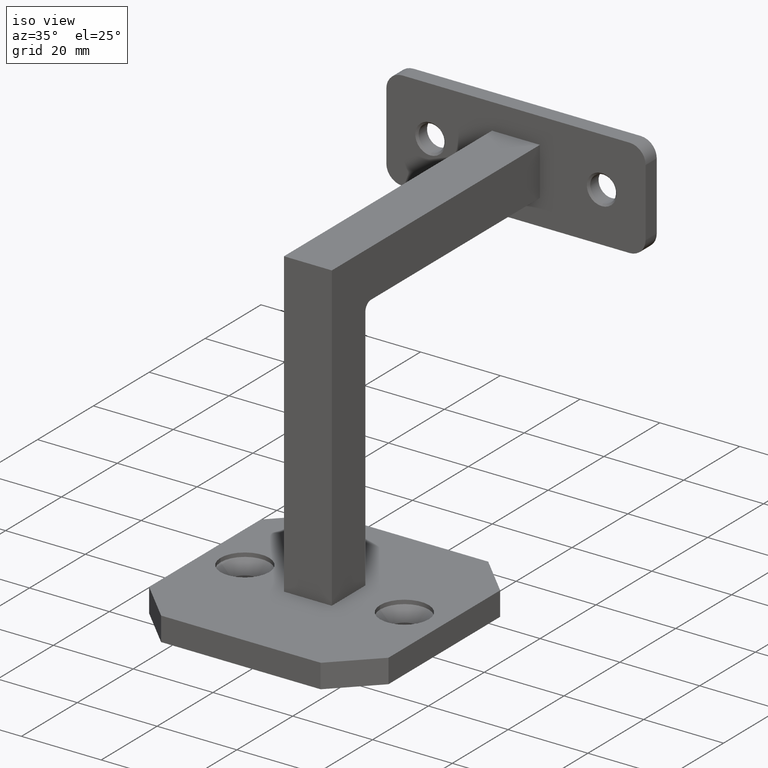
[diagram: clean part render]
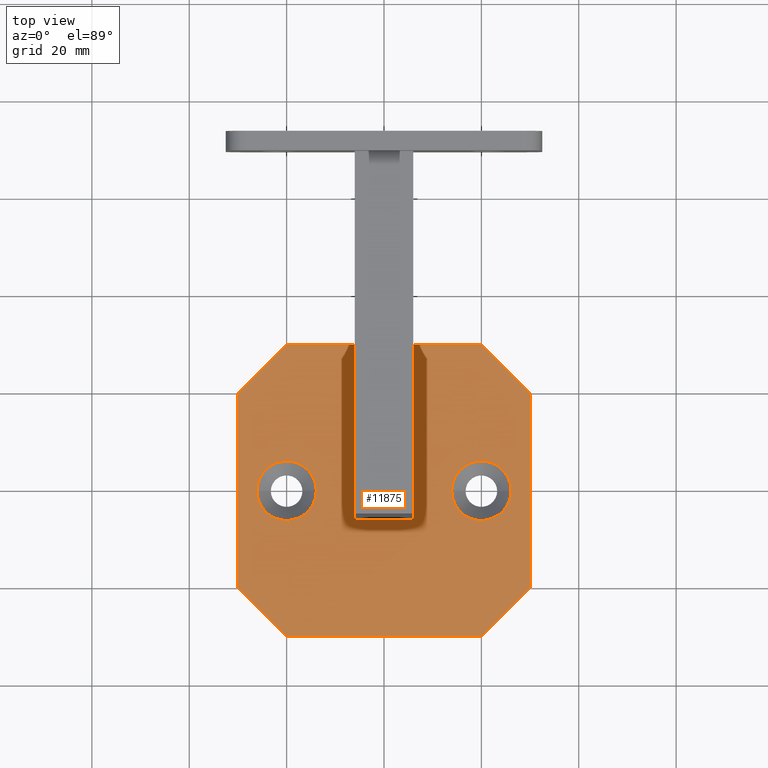
[diagram: tour spotlight — one face highlighted and labeled with its STEP entity id]
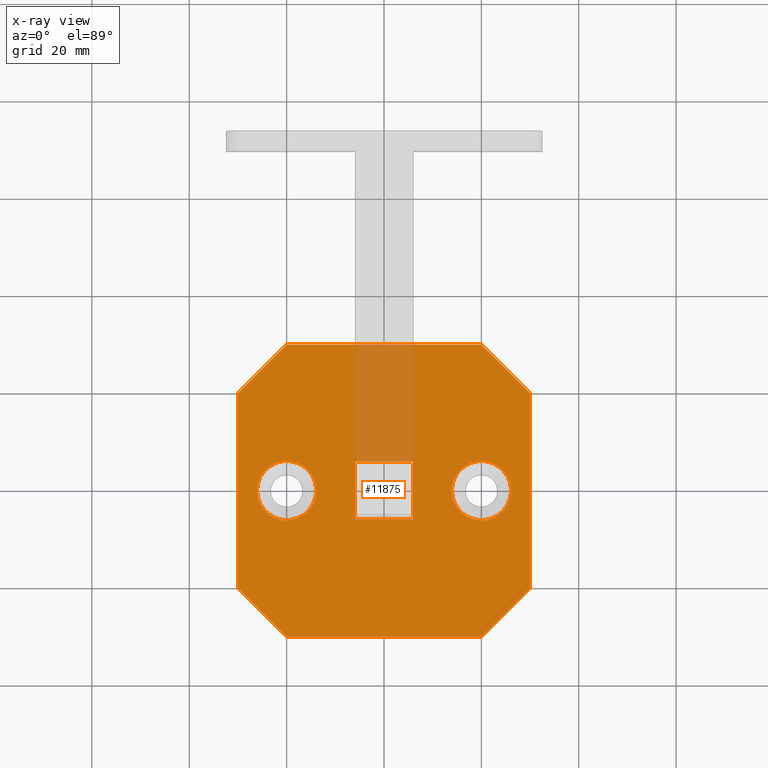
[diagram: x-ray of the same camera — body ghosted, this tour face saturated]
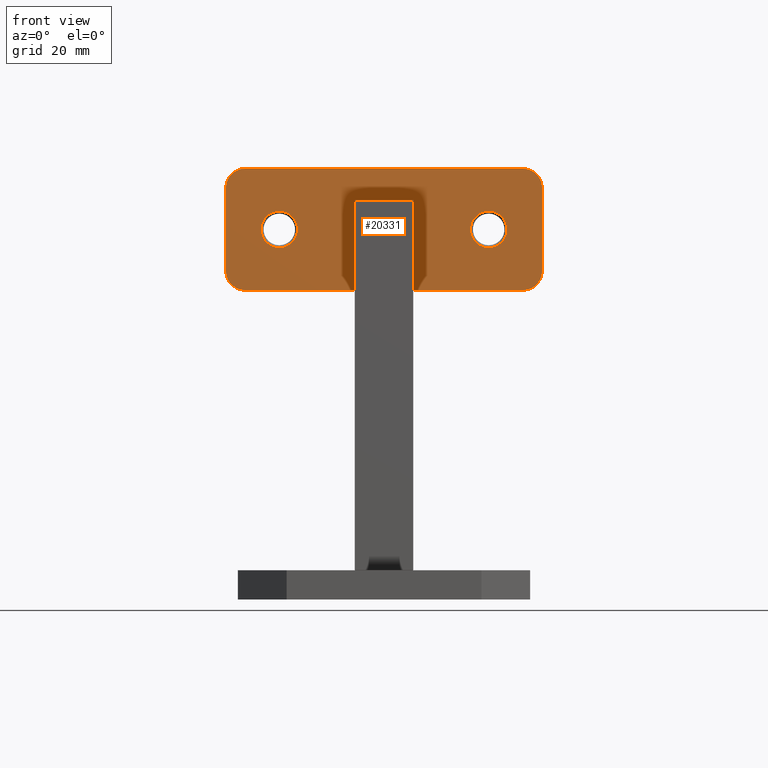
[diagram: tour spotlight — one face highlighted and labeled with its STEP entity id]
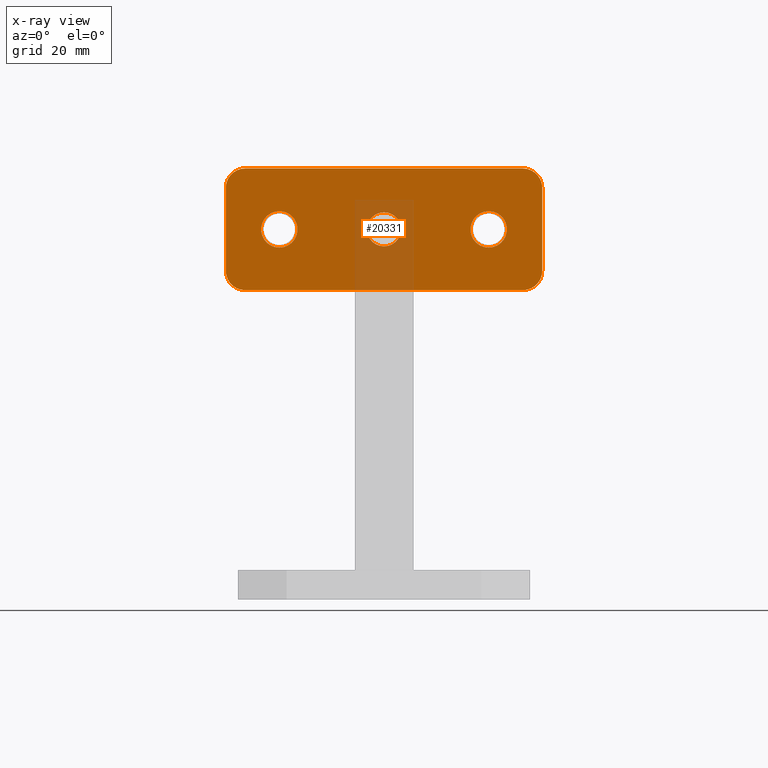
[diagram: x-ray of the same camera — body ghosted, this tour face saturated]
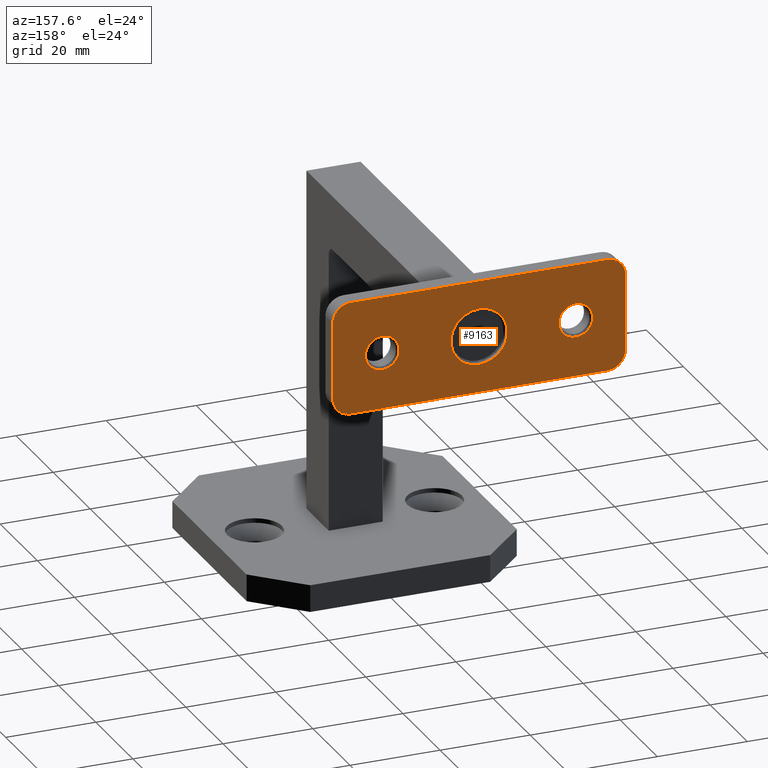
[diagram: tour spotlight — one face highlighted and labeled with its STEP entity id]
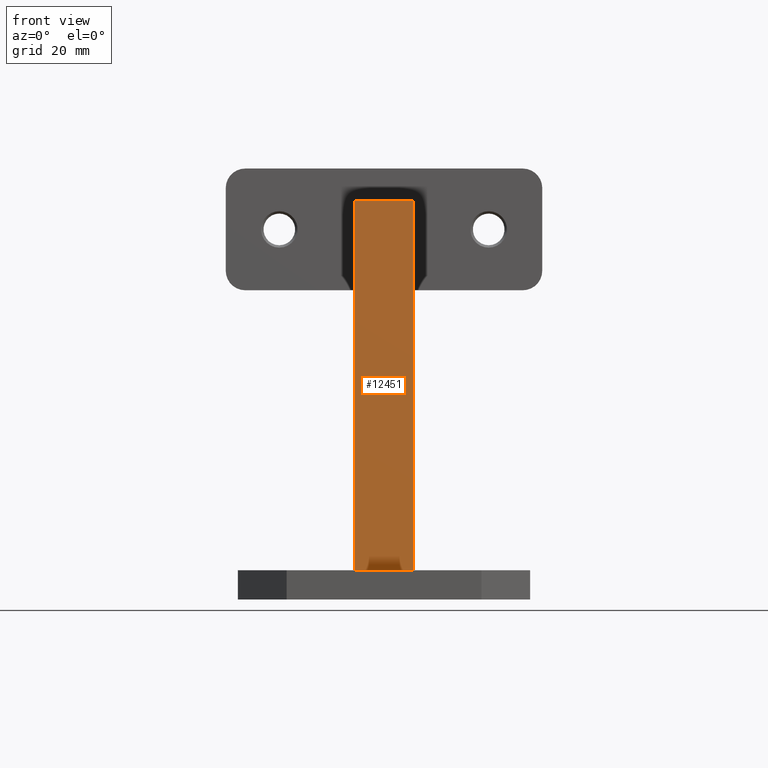
[diagram: tour spotlight — one face highlighted and labeled with its STEP entity id]
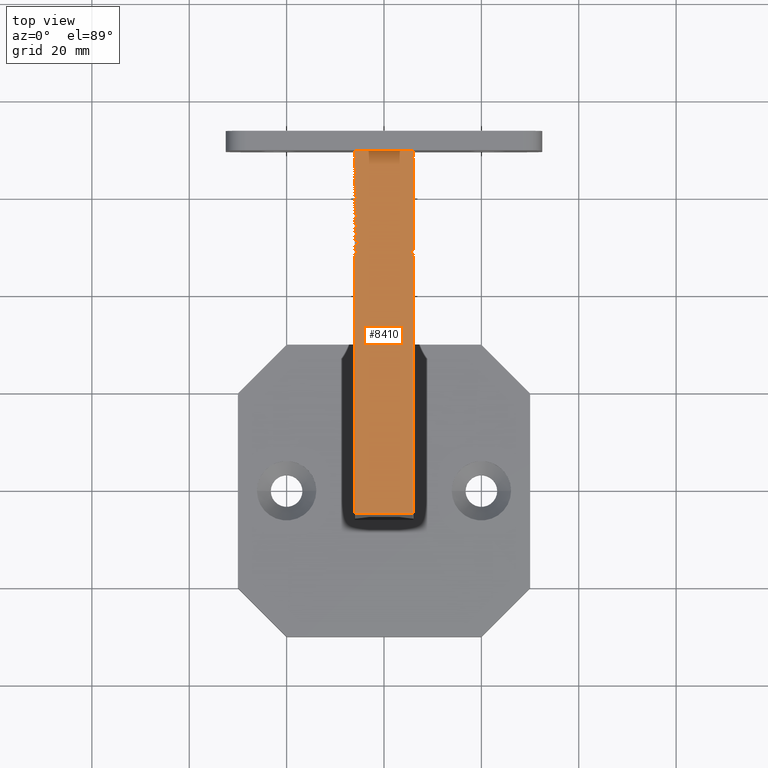
[diagram: tour spotlight — one face highlighted and labeled with its STEP entity id]
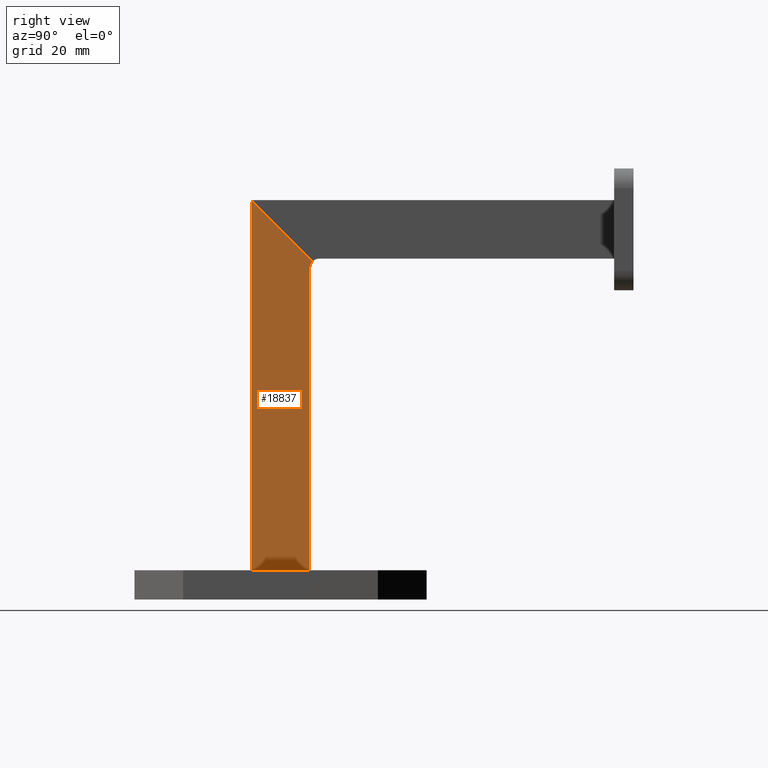
[diagram: tour spotlight — one face highlighted and labeled with its STEP entity id]
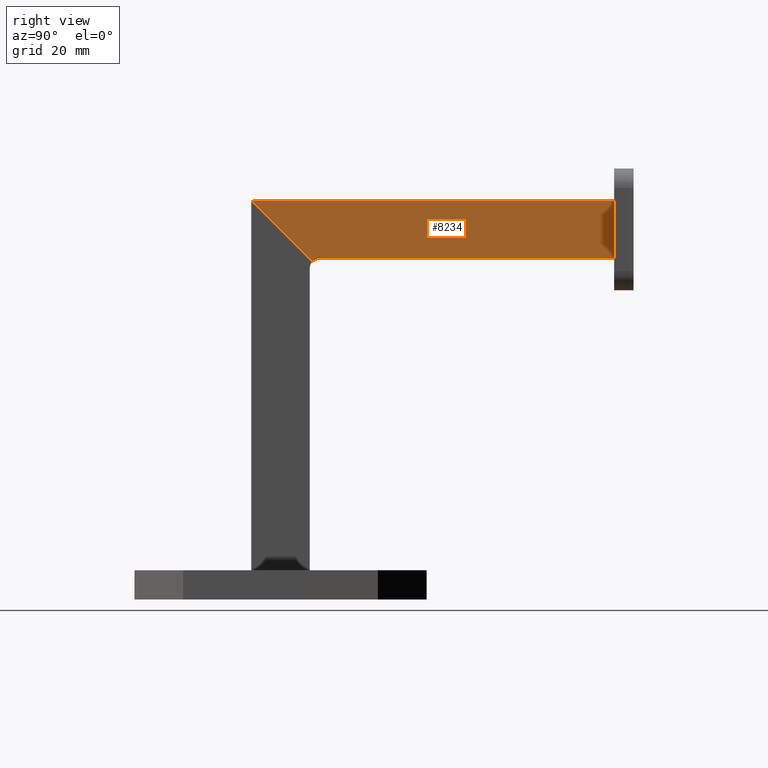
[diagram: tour spotlight — one face highlighted and labeled with its STEP entity id]
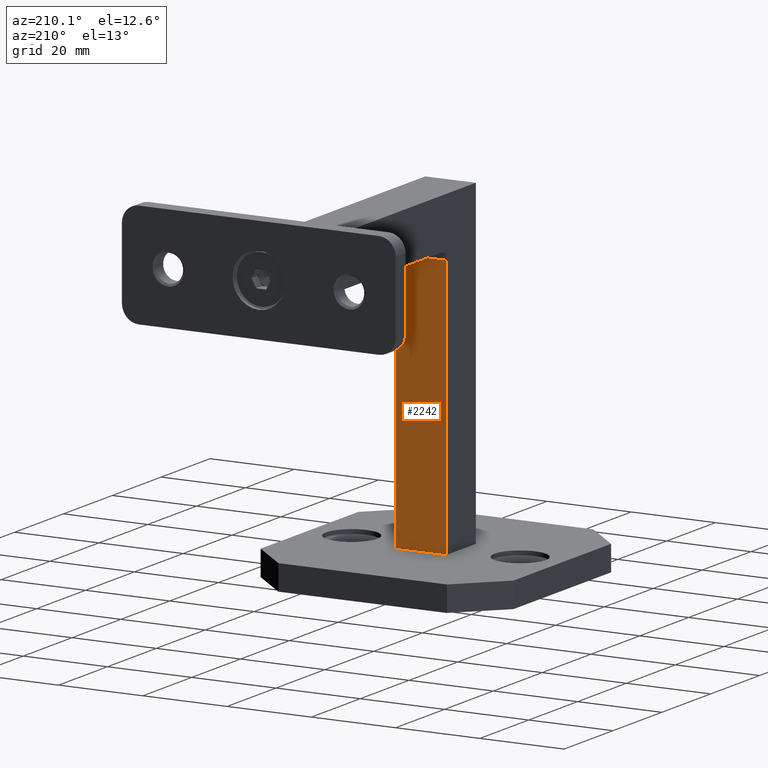
[diagram: tour spotlight — one face highlighted and labeled with its STEP entity id]
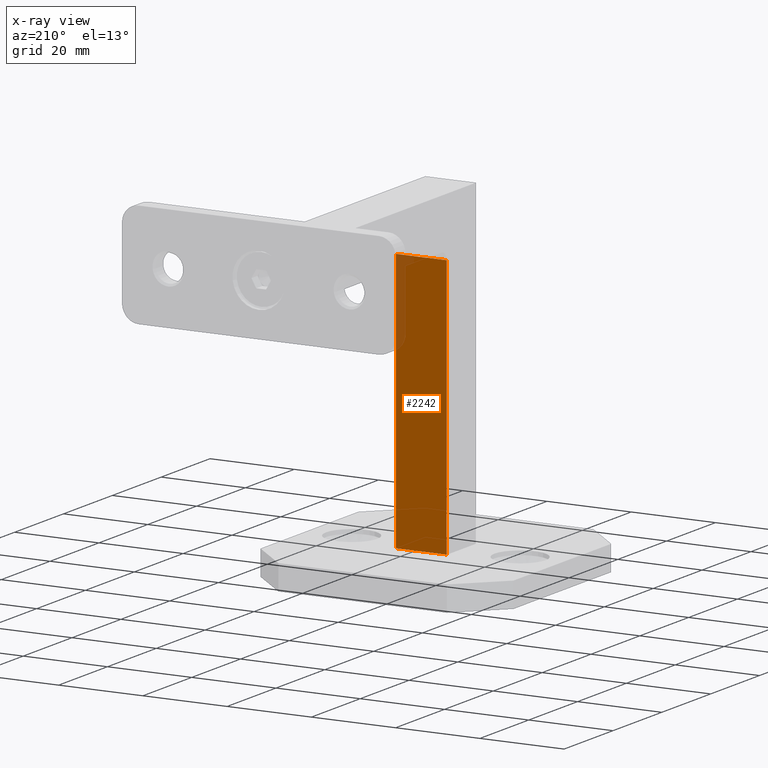
[diagram: x-ray of the same camera — body ghosted, this tour face saturated]
A machine part: a face-by-face anatomy tour. The part has 432 B-rep faces; the first image is the clean iso view, then the 8 largest visible faces are spotlighted one at a time (largest first), each with its STEP entity span.

Face 1 — top view, entity #11875. An x-ray twin of the same camera follows (body ghosted, this face saturated) — the face is partly hidden behind the body. In plain terms, the highlighted planar face has unit normal (0, 0, 1).
Definition (entity closure, byte-faithful):
#186 = DIRECTION ( 'NONE',  ( -0.000000000000000000, -0.000000000000000000, 1.000000000000000000 ) ) ;
#515 = ORIENTED_EDGE ( 'NONE', *, *, #21458, .T. ) ;
#551 = DIRECTION ( 'NONE',  ( 0.7071067811865459074, -0.7071067811865491270, 0.000000000000000000 ) ) ;
#609 = CARTESIAN_POINT ( 'NONE',  ( -5.949999999999995737, 5.949999999999995737, 3.000000000000000444 ) ) ;
#975 = EDGE_LOOP ( 'NONE', ( #13327, #7490, #19783, #22937, #19043 ) ) ;
#1292 = VERTEX_POINT ( 'NONE', #11741 ) ;
#1524 = ORIENTED_EDGE ( 'NONE', *, *, #9745, .T. ) ;
#1606 = EDGE_LOOP ( 'NONE', ( #22865, #15292 ) ) ;
#1677 = VECTOR ( 'NONE', #551, 1000.000000000000000 ) ;
#1768 = AXIS2_PLACEMENT_3D ( 'NONE', #16456, #186, #7269 ) ;
#1821 = CARTESIAN_POINT ( 'NONE',  ( 20.00000000000000000, 0.000000000000000000, 3.000000000000001776 ) ) ;
#2411 = CARTESIAN_POINT ( 'NONE',  ( 19.99999999999992539, -30.00000000000000000, 3.000000000000000000 ) ) ;
#2460 = CARTESIAN_POINT ( 'NONE',  ( 0.000000000000000000, 0.000000000000000000, 3.000000000000000000 ) ) ;
#2466 = EDGE_CURVE ( 'NONE', #22866, #14409, #11302, .T. ) ;
#2567 = EDGE_LOOP ( 'NONE', ( #7065, #21876, #18526, #14764, #8557, #12505, #1524, #515 ) ) ;
#2986 = VERTEX_POINT ( 'NONE', #11219 ) ;
#3045 = AXIS2_PLACEMENT_3D ( 'NONE', #1821, #3295, #15764 ) ;
#3077 = VERTEX_POINT ( 'NONE', #609 ) ;
#3183 = LINE ( 'NONE', #19530, #9046 ) ;
#3224 = CARTESIAN_POINT ( 'NONE',  ( 25.00000000000004263, 24.99999999999993960, 3.000000000000000000 ) ) ;
#3295 = DIRECTION ( 'NONE',  ( -0.000000000000000000, -0.000000000000000000, 1.000000000000000000 ) ) ;
#4279 = VECTOR ( 'NONE', #18988, 1000.000000000000000 ) ;
#4290 = AXIS2_PLACEMENT_3D ( 'NONE', #12081, #21025, #22814 ) ;
#4326 = VERTEX_POINT ( 'NONE', #21618 ) ;
#4432 = FACE_BOUND ( 'NONE', #1606, .T. ) ;
#4726 = LINE ( 'NONE', #8832, #22832 ) ;
#4813 = ORIENTED_EDGE ( 'NONE', *, *, #8372, .F. ) ;
#4851 = EDGE_CURVE ( 'NONE', #10056, #9302, #12641, .T. ) ;
#4994 = EDGE_CURVE ( 'NONE', #6469, #1292, #10099, .T. ) ;
#5534 = CARTESIAN_POINT ( 'NONE',  ( 19.99999999999997513, 30.00000000000001421, 3.000000000000000000 ) ) ;
#5597 = VERTEX_POINT ( 'NONE', #17599 ) ;
#5737 = VERTEX_POINT ( 'NONE', #5534 ) ;
#5951 = LINE ( 'NONE', #19146, #4279 ) ;
#5952 = CARTESIAN_POINT ( 'NONE',  ( 0.000000000000000000, 5.949999999999999289, 3.000000000000000444 ) ) ;
#6094 = AXIS2_PLACEMENT_3D ( 'NONE', #8504, #15438, #17457 ) ;
#6317 = CARTESIAN_POINT ( 'NONE',  ( -5.949999999999997513, -5.950000000000001066, 3.000000000000000444 ) ) ;
#6410 = LINE ( 'NONE', #6317, #8918 ) ;
#6469 = VERTEX_POINT ( 'NONE', #15039 ) ;
#6595 = CARTESIAN_POINT ( 'NONE',  ( 5.950000000000003730, 5.949999999999999289, 3.000000000000000444 ) ) ;
#6600 = EDGE_CURVE ( 'NONE', #3077, #9302, #5951, .T. ) ;
#7023 = VECTOR ( 'NONE', #20019, 1000.000000000000000 ) ;
#7065 = ORIENTED_EDGE ( 'NONE', *, *, #22290, .T. ) ;
#7269 = DIRECTION ( 'NONE',  ( 1.000000000000000000, 0.000000000000000000, 0.000000000000000000 ) ) ;
#7421 = LINE ( 'NONE', #7981, #16887 ) ;
#7430 = DIRECTION ( 'NONE',  ( -1.000000000000000000, -0.000000000000000000, -0.000000000000000000 ) ) ;
#7490 = ORIENTED_EDGE ( 'NONE', *, *, #15410, .T. ) ;
#7519 = DIRECTION ( 'NONE',  ( 1.000000000000000000, 0.000000000000000000, 0.000000000000000000 ) ) ;
#7590 = AXIS2_PLACEMENT_3D ( 'NONE', #2460, #14926, #7519 ) ;
#7677 = EDGE_CURVE ( 'NONE', #18751, #22866, #19281, .T. ) ;
#7904 = CARTESIAN_POINT ( 'NONE',  ( -19.99999999999999289, 30.00000000000000711, 3.000000000000000000 ) ) ;
#7981 = CARTESIAN_POINT ( 'NONE',  ( 5.950000000000001954, -5.950000000000009059, 3.000000000000000444 ) ) ;
#8109 = DIRECTION ( 'NONE',  ( 1.445602896647339163E-16, 1.000000000000000000, 0.000000000000000000 ) ) ;
#8372 = EDGE_CURVE ( 'NONE', #1292, #6469, #14856, .T. ) ;
#8504 = CARTESIAN_POINT ( 'NONE',  ( -20.00000000000000000, 0.000000000000000000, 3.000000000000001776 ) ) ;
#8557 = ORIENTED_EDGE ( 'NONE', *, *, #10456, .T. ) ;
#8672 = EDGE_CURVE ( 'NONE', #10056, #10227, #9255, .T. ) ;
#8832 = CARTESIAN_POINT ( 'NONE',  ( -30.00000000000000711, -29.99999999999999645, 3.000000000000000000 ) ) ;
#8918 = VECTOR ( 'NONE', #8109, 1000.000000000000000 ) ;
#9043 = VECTOR ( 'NONE', #11399, 1000.000000000000000 ) ;
#9046 = VECTOR ( 'NONE', #13938, 1000.000000000000114 ) ;
#9255 = LINE ( 'NONE', #11300, #21786 ) ;
#9302 = VERTEX_POINT ( 'NONE', #5952 ) ;
#9639 = DIRECTION ( 'NONE',  ( -1.445602896647338424E-16, -1.000000000000000000, 0.000000000000000000 ) ) ;
#9745 = EDGE_CURVE ( 'NONE', #4326, #21080, #11772, .T. ) ;
#10046 = CIRCLE ( 'NONE', #1768, 6.100000000000001421 ) ;
#10056 = VERTEX_POINT ( 'NONE', #6595 ) ;
#10099 = CIRCLE ( 'NONE', #3045, 6.100000000000001421 ) ;
#10227 = VERTEX_POINT ( 'NONE', #18012 ) ;
#10374 = CARTESIAN_POINT ( 'NONE',  ( -30.00000000000000711, -19.99999999999994671, 3.000000000000000000 ) ) ;
#10456 = EDGE_CURVE ( 'NONE', #5737, #19231, #21214, .T. ) ;
#10505 = EDGE_CURVE ( 'NONE', #17299, #5597, #10046, .T. ) ;
#10572 = CIRCLE ( 'NONE', #6094, 6.100000000000001421 ) ;
#11219 = CARTESIAN_POINT ( 'NONE',  ( -20.00000000000000355, -30.00000000000000000, 3.000000000000000000 ) ) ;
#11300 = CARTESIAN_POINT ( 'NONE',  ( 5.950000000000003730, 5.949999999999999289, 3.000000000000000444 ) ) ;
#11302 = LINE ( 'NONE', #19804, #9043 ) ;
#11399 = DIRECTION ( 'NONE',  ( -1.734723475976807094E-16, 1.000000000000000000, -0.000000000000000000 ) ) ;
#11741 = CARTESIAN_POINT ( 'NONE',  ( 26.10000000000000142, 0.000000000000000000, 3.000000000000001776 ) ) ;
#11772 = LINE ( 'NONE', #16985, #7023 ) ;
#11875 = ADVANCED_FACE ( 'NONE', ( #18937, #4432, #22831, #21998 ), #19606, .T. ) ;
#12081 = CARTESIAN_POINT ( 'NONE',  ( 20.00000000000000000, 0.000000000000000000, 3.000000000000001776 ) ) ;
#12271 = LINE ( 'NONE', #18440, #1677 ) ;
#12452 = EDGE_CURVE ( 'NONE', #5597, #17299, #10572, .T. ) ;
#12505 = ORIENTED_EDGE ( 'NONE', *, *, #16730, .T. ) ;
#12641 = LINE ( 'NONE', #13842, #16242 ) ;
#13183 = VECTOR ( 'NONE', #13653, 1000.000000000000000 ) ;
#13327 = ORIENTED_EDGE ( 'NONE', *, *, #8672, .T. ) ;
#13653 = DIRECTION ( 'NONE',  ( 0.7071067811865486830, 0.7071067811865464625, -0.000000000000000000 ) ) ;
#13842 = CARTESIAN_POINT ( 'NONE',  ( 6.082703296142693894, 5.949999999999999289, 3.000000000000000444 ) ) ;
#13938 = DIRECTION ( 'NONE',  ( -0.7071067811865489050, -0.7071067811865460184, -0.000000000000000000 ) ) ;
#14409 = VERTEX_POINT ( 'NONE', #22019 ) ;
#14764 = ORIENTED_EDGE ( 'NONE', *, *, #17819, .T. ) ;
#14856 = CIRCLE ( 'NONE', #4290, 6.100000000000001421 ) ;
#14917 = VERTEX_POINT ( 'NONE', #22259 ) ;
#14926 = DIRECTION ( 'NONE',  ( -0.000000000000000000, 0.000000000000000000, 1.000000000000000000 ) ) ;
#15039 = CARTESIAN_POINT ( 'NONE',  ( 13.89999999999999858, 7.470345474798856265E-16, 3.000000000000001776 ) ) ;
#15292 = ORIENTED_EDGE ( 'NONE', *, *, #10505, .F. ) ;
#15410 = EDGE_CURVE ( 'NONE', #10227, #14917, #7421, .T. ) ;
#15438 = DIRECTION ( 'NONE',  ( -0.000000000000000000, -0.000000000000000000, 1.000000000000000000 ) ) ;
#15764 = DIRECTION ( 'NONE',  ( 1.000000000000000000, 0.000000000000000000, 0.000000000000000000 ) ) ;
#16000 = CARTESIAN_POINT ( 'NONE',  ( -26.10000000000000142, 7.470345474798859223E-16, 3.000000000000001776 ) ) ;
#16153 = CARTESIAN_POINT ( 'NONE',  ( -30.00000000000001066, 30.00000000000000711, 3.000000000000000000 ) ) ;
#16242 = VECTOR ( 'NONE', #19195, 1000.000000000000000 ) ;
#16456 = CARTESIAN_POINT ( 'NONE',  ( -20.00000000000000000, 0.000000000000000000, 3.000000000000001776 ) ) ;
#16481 = VECTOR ( 'NONE', #7430, 1000.000000000000000 ) ;
#16591 = VECTOR ( 'NONE', #20896, 1000.000000000000114 ) ;
#16730 = EDGE_CURVE ( 'NONE', #19231, #4326, #3183, .T. ) ;
#16887 = VECTOR ( 'NONE', #21925, 1000.000000000000000 ) ;
#16985 = CARTESIAN_POINT ( 'NONE',  ( -30.00000000000001066, 30.00000000000000711, 3.000000000000000000 ) ) ;
#17299 = VERTEX_POINT ( 'NONE', #16000 ) ;
#17457 = DIRECTION ( 'NONE',  ( 1.000000000000000000, 0.000000000000000000, 0.000000000000000000 ) ) ;
#17599 = CARTESIAN_POINT ( 'NONE',  ( -13.89999999999999858, 0.000000000000000000, 3.000000000000001776 ) ) ;
#17819 = EDGE_CURVE ( 'NONE', #14409, #5737, #23043, .T. ) ;
#18012 = CARTESIAN_POINT ( 'NONE',  ( 5.950000000000001954, -5.950000000000009059, 3.000000000000000444 ) ) ;
#18440 = CARTESIAN_POINT ( 'NONE',  ( -25.00000000000004619, -24.99999999999993250, 3.000000000000000000 ) ) ;
#18526 = ORIENTED_EDGE ( 'NONE', *, *, #2466, .T. ) ;
#18552 = EDGE_LOOP ( 'NONE', ( #4813, #20752 ) ) ;
#18751 = VERTEX_POINT ( 'NONE', #2411 ) ;
#18937 = FACE_BOUND ( 'NONE', #975, .T. ) ;
#18988 = DIRECTION ( 'NONE',  ( 1.000000000000000000, 0.000000000000000000, 0.000000000000000000 ) ) ;
#19043 = ORIENTED_EDGE ( 'NONE', *, *, #4851, .F. ) ;
#19146 = CARTESIAN_POINT ( 'NONE',  ( -5.949999999999995737, 5.949999999999995737, 3.000000000000000444 ) ) ;
#19195 = DIRECTION ( 'NONE',  ( -1.000000000000000000, -0.000000000000000000, -0.000000000000000000 ) ) ;
#19231 = VERTEX_POINT ( 'NONE', #7904 ) ;
#19281 = LINE ( 'NONE', #22517, #13183 ) ;
#19530 = CARTESIAN_POINT ( 'NONE',  ( -24.99999999999995737, 25.00000000000006395, 3.000000000000000000 ) ) ;
#19606 = PLANE ( 'NONE',  #7590 ) ;
#19783 = ORIENTED_EDGE ( 'NONE', *, *, #20792, .T. ) ;
#19804 = CARTESIAN_POINT ( 'NONE',  ( 29.99999999999998579, 30.00000000000000711, 3.000000000000000000 ) ) ;
#20019 = DIRECTION ( 'NONE',  ( 5.782411586589357392E-17, -1.000000000000000000, 0.000000000000000000 ) ) ;
#20752 = ORIENTED_EDGE ( 'NONE', *, *, #4994, .F. ) ;
#20792 = EDGE_CURVE ( 'NONE', #14917, #3077, #6410, .T. ) ;
#20896 = DIRECTION ( 'NONE',  ( -0.7071067811865461294, 0.7071067811865489050, -0.000000000000000000 ) ) ;
#21025 = DIRECTION ( 'NONE',  ( -0.000000000000000000, -0.000000000000000000, 1.000000000000000000 ) ) ;
#21080 = VERTEX_POINT ( 'NONE', #10374 ) ;
#21214 = LINE ( 'NONE', #16153, #16481 ) ;
#21218 = DIRECTION ( 'NONE',  ( 1.000000000000000000, 0.000000000000000000, 0.000000000000000000 ) ) ;
#21458 = EDGE_CURVE ( 'NONE', #21080, #2986, #12271, .T. ) ;
#21618 = CARTESIAN_POINT ( 'NONE',  ( -30.00000000000001066, 20.00000000000003197, 3.000000000000000000 ) ) ;
#21786 = VECTOR ( 'NONE', #9639, 1000.000000000000000 ) ;
#21876 = ORIENTED_EDGE ( 'NONE', *, *, #7677, .T. ) ;
#21925 = DIRECTION ( 'NONE',  ( -1.000000000000000000, 7.228014483236695569E-16, 0.000000000000000000 ) ) ;
#21998 = FACE_OUTER_BOUND ( 'NONE', #2567, .T. ) ;
#22019 = CARTESIAN_POINT ( 'NONE',  ( 29.99999999999998934, 19.99999999999997513, 3.000000000000000000 ) ) ;
#22259 = CARTESIAN_POINT ( 'NONE',  ( -5.949999999999997513, -5.950000000000001066, 3.000000000000000444 ) ) ;
#22290 = EDGE_CURVE ( 'NONE', #2986, #18751, #4726, .T. ) ;
#22517 = CARTESIAN_POINT ( 'NONE',  ( 24.99999999999993250, -25.00000000000001066, 3.000000000000000000 ) ) ;
#22814 = DIRECTION ( 'NONE',  ( 1.000000000000000000, 0.000000000000000000, 0.000000000000000000 ) ) ;
#22831 = FACE_BOUND ( 'NONE', #18552, .T. ) ;
#22832 = VECTOR ( 'NONE', #21218, 1000.000000000000000 ) ;
#22865 = ORIENTED_EDGE ( 'NONE', *, *, #12452, .F. ) ;
#22866 = VERTEX_POINT ( 'NONE', #22998 ) ;
#22937 = ORIENTED_EDGE ( 'NONE', *, *, #6600, .T. ) ;
#22998 = CARTESIAN_POINT ( 'NONE',  ( 29.99999999999999645, -19.99999999999995737, 3.000000000000000000 ) ) ;
#23043 = LINE ( 'NONE', #3224, #16591 ) ;

Face 2 — front view, entity #20331. An x-ray twin of the same camera follows (body ghosted, this face saturated) — the face is partly hidden behind the body. In plain terms, the highlighted planar face has unit normal (0, 1, 0).
Definition (entity closure, byte-faithful):
#335 = AXIS2_PLACEMENT_3D ( 'NONE', #17238, #3053, #15527 ) ;
#485 = CARTESIAN_POINT ( 'NONE',  ( -21.50000000000000000, -2.000000000000000000, 0.000000000000000000 ) ) ;
#537 = CARTESIAN_POINT ( 'NONE',  ( -32.50000000000000000, -2.000000000000000000, 12.49999999999999822 ) ) ;
#705 = CARTESIAN_POINT ( 'NONE',  ( 21.50000000000000000, -2.000000000000000000, -5.265981236333618470E-15 ) ) ;
#806 = CARTESIAN_POINT ( 'NONE',  ( 28.49999999999999645, -2.000000000000000000, -8.500000000000001776 ) ) ;
#956 = LINE ( 'NONE', #537, #4840 ) ;
#1166 = EDGE_CURVE ( 'NONE', #13053, #4183, #11607, .T. ) ;
#1188 = EDGE_CURVE ( 'NONE', #20910, #21299, #17716, .T. ) ;
#1320 = CARTESIAN_POINT ( 'NONE',  ( 32.50000000000000000, -2.000000000000000000, -12.50000000000000178 ) ) ;
#1730 = ORIENTED_EDGE ( 'NONE', *, *, #13311, .T. ) ;
#1783 = CARTESIAN_POINT ( 'NONE',  ( -32.50000000000000000, -2.000000000000000000, -12.50000000000000178 ) ) ;
#1985 = FACE_BOUND ( 'NONE', #5672, .T. ) ;
#1990 = ORIENTED_EDGE ( 'NONE', *, *, #7188, .T. ) ;
#2077 = DIRECTION ( 'NONE',  ( 0.000000000000000000, 1.000000000000000000, 0.000000000000000000 ) ) ;
#2289 = CARTESIAN_POINT ( 'NONE',  ( 0.000000000000000000, -2.000000000000003553, 0.000000000000000000 ) ) ;
#2359 = DIRECTION ( 'NONE',  ( -0.000000000000000000, -1.000000000000000000, -0.000000000000000000 ) ) ;
#2555 = AXIS2_PLACEMENT_3D ( 'NONE', #11404, #15507, #20800 ) ;
#3009 = EDGE_CURVE ( 'NONE', #13053, #21299, #956, .T. ) ;
#3053 = DIRECTION ( 'NONE',  ( -0.000000000000000000, 1.000000000000000000, -0.000000000000000000 ) ) ;
#3103 = CIRCLE ( 'NONE', #2555, 4.000000000000000000 ) ;
#3149 = DIRECTION ( 'NONE',  ( 0.000000000000000000, 0.000000000000000000, 1.000000000000000000 ) ) ;
#3197 = VERTEX_POINT ( 'NONE', #4412 ) ;
#3456 = ORIENTED_EDGE ( 'NONE', *, *, #18810, .T. ) ;
#3718 = PLANE ( 'NONE',  #8390 ) ;
#3791 = CARTESIAN_POINT ( 'NONE',  ( -21.50000000000000000, -2.000000000000000000, 3.749999999999989342 ) ) ;
#3863 = EDGE_LOOP ( 'NONE', ( #4106, #14146, #11359, #10447, #17255, #13600, #6614, #11577 ) ) ;
#4106 = ORIENTED_EDGE ( 'NONE', *, *, #3009, .F. ) ;
#4183 = VERTEX_POINT ( 'NONE', #4973 ) ;
#4412 = CARTESIAN_POINT ( 'NONE',  ( 32.50000000000000000, -2.000000000000000000, -8.500000000000001776 ) ) ;
#4418 = AXIS2_PLACEMENT_3D ( 'NONE', #17409, #12047, #3149 ) ;
#4519 = DIRECTION ( 'NONE',  ( 0.000000000000000000, 0.000000000000000000, 1.000000000000000000 ) ) ;
#4840 = VECTOR ( 'NONE', #13002, 1000.000000000000000 ) ;
#4943 = CARTESIAN_POINT ( 'NONE',  ( -21.50000000000000000, -2.000000000000000000, -3.749999999999989342 ) ) ;
#4973 = CARTESIAN_POINT ( 'NONE',  ( -32.50000000000000000, -2.000000000000000000, 8.499999999999998224 ) ) ;
#5112 = DIRECTION ( 'NONE',  ( -0.000000000000000000, -1.000000000000000000, -0.000000000000000000 ) ) ;
#5672 = EDGE_LOOP ( 'NONE', ( #18086, #1730 ) ) ;
#5704 = DIRECTION ( 'NONE',  ( 0.000000000000000000, 1.000000000000000000, 0.000000000000000000 ) ) ;
#5799 = ORIENTED_EDGE ( 'NONE', *, *, #13814, .T. ) ;
#5863 = AXIS2_PLACEMENT_3D ( 'NONE', #20404, #9741, #17056 ) ;
#6320 = CARTESIAN_POINT ( 'NONE',  ( 21.50000000000000000, -2.000000000000000000, -3.749999999999994671 ) ) ;
#6409 = CIRCLE ( 'NONE', #16231, 4.000000000000000000 ) ;
#6614 = ORIENTED_EDGE ( 'NONE', *, *, #15074, .F. ) ;
#6625 = CARTESIAN_POINT ( 'NONE',  ( 32.50000000000000000, -2.000000000000000000, 8.499999999999998224 ) ) ;
#6899 = DIRECTION ( 'NONE',  ( 0.000000000000000000, 0.000000000000000000, 1.000000000000000000 ) ) ;
#7188 = EDGE_CURVE ( 'NONE', #22635, #12302, #11251, .T. ) ;
#7195 = VERTEX_POINT ( 'NONE', #10256 ) ;
#7368 = DIRECTION ( 'NONE',  ( 0.000000000000000000, -0.000000000000000000, 1.000000000000000000 ) ) ;
#7406 = CARTESIAN_POINT ( 'NONE',  ( 28.49999999999999645, -2.000000000000000000, 12.49999999999999822 ) ) ;
#7566 = FACE_OUTER_BOUND ( 'NONE', #3863, .T. ) ;
#8273 = VERTEX_POINT ( 'NONE', #12950 ) ;
#8390 = AXIS2_PLACEMENT_3D ( 'NONE', #14614, #2077, #7368 ) ;
#8670 = VERTEX_POINT ( 'NONE', #20227 ) ;
#9137 = CIRCLE ( 'NONE', #5863, 3.749999999999989342 ) ;
#9323 = ORIENTED_EDGE ( 'NONE', *, *, #9660, .T. ) ;
#9604 = CARTESIAN_POINT ( 'NONE',  ( 21.50000000000000000, -2.000000000000000000, 3.749999999999984457 ) ) ;
#9660 = EDGE_CURVE ( 'NONE', #13067, #17847, #16765, .T. ) ;
#9741 = DIRECTION ( 'NONE',  ( 0.000000000000000000, 1.000000000000000000, 0.000000000000000000 ) ) ;
#9752 = DIRECTION ( 'NONE',  ( 0.000000000000000000, 0.000000000000000000, 1.000000000000000000 ) ) ;
#10256 = CARTESIAN_POINT ( 'NONE',  ( -28.50000000000000000, -2.000000000000000000, -12.50000000000000178 ) ) ;
#10447 = ORIENTED_EDGE ( 'NONE', *, *, #18237, .T. ) ;
#10591 = EDGE_CURVE ( 'NONE', #8670, #12404, #11192, .T. ) ;
#10595 = EDGE_CURVE ( 'NONE', #8273, #3197, #6409, .T. ) ;
#10958 = EDGE_CURVE ( 'NONE', #8273, #7195, #11732, .T. ) ;
#11192 = CIRCLE ( 'NONE', #18466, 3.500000000000010214 ) ;
#11251 = CIRCLE ( 'NONE', #4418, 3.749999999999989342 ) ;
#11359 = ORIENTED_EDGE ( 'NONE', *, *, #21814, .F. ) ;
#11404 = CARTESIAN_POINT ( 'NONE',  ( -28.50000000000000000, -2.000000000000000000, -8.500000000000001776 ) ) ;
#11516 = CARTESIAN_POINT ( 'NONE',  ( 28.50000000000000000, -2.000000000000000000, 8.499999999999998224 ) ) ;
#11577 = ORIENTED_EDGE ( 'NONE', *, *, #1188, .T. ) ;
#11607 = CIRCLE ( 'NONE', #16161, 4.000000000000000000 ) ;
#11632 = LINE ( 'NONE', #1320, #15797 ) ;
#11693 = VERTEX_POINT ( 'NONE', #17580 ) ;
#11732 = LINE ( 'NONE', #22900, #13671 ) ;
#12047 = DIRECTION ( 'NONE',  ( 0.000000000000000000, 1.000000000000000000, 0.000000000000000000 ) ) ;
#12225 = DIRECTION ( 'NONE',  ( -0.000000000000000000, -0.000000000000000000, -1.000000000000000000 ) ) ;
#12246 = DIRECTION ( 'NONE',  ( -1.000000000000000000, -0.000000000000000000, -0.000000000000000000 ) ) ;
#12302 = VERTEX_POINT ( 'NONE', #9604 ) ;
#12404 = VERTEX_POINT ( 'NONE', #13500 ) ;
#12783 = DIRECTION ( 'NONE',  ( 0.000000000000000000, 0.000000000000000000, 1.000000000000000000 ) ) ;
#12950 = CARTESIAN_POINT ( 'NONE',  ( 28.49999999999999645, -2.000000000000000000, -12.50000000000000178 ) ) ;
#13002 = DIRECTION ( 'NONE',  ( 1.000000000000000000, 0.000000000000000000, 0.000000000000000000 ) ) ;
#13053 = VERTEX_POINT ( 'NONE', #19677 ) ;
#13067 = VERTEX_POINT ( 'NONE', #3791 ) ;
#13311 = EDGE_CURVE ( 'NONE', #12404, #8670, #15549, .T. ) ;
#13500 = CARTESIAN_POINT ( 'NONE',  ( 4.286263797015748921E-16, -2.000000000000003553, -3.500000000000010658 ) ) ;
#13600 = ORIENTED_EDGE ( 'NONE', *, *, #10595, .T. ) ;
#13671 = VECTOR ( 'NONE', #12246, 1000.000000000000000 ) ;
#13814 = EDGE_CURVE ( 'NONE', #17847, #13067, #9137, .T. ) ;
#13996 = CARTESIAN_POINT ( 'NONE',  ( -28.50000000000000000, -2.000000000000000000, 8.499999999999998224 ) ) ;
#14146 = ORIENTED_EDGE ( 'NONE', *, *, #1166, .T. ) ;
#14614 = CARTESIAN_POINT ( 'NONE',  ( 0.000000000000000000, -2.000000000000000000, 0.000000000000000000 ) ) ;
#15074 = EDGE_CURVE ( 'NONE', #20910, #3197, #11632, .T. ) ;
#15170 = DIRECTION ( 'NONE',  ( -0.000000000000000000, -1.000000000000000000, -0.000000000000000000 ) ) ;
#15365 = FACE_BOUND ( 'NONE', #22454, .T. ) ;
#15507 = DIRECTION ( 'NONE',  ( -0.000000000000000000, -1.000000000000000000, -0.000000000000000000 ) ) ;
#15527 = DIRECTION ( 'NONE',  ( 0.000000000000000000, 0.000000000000000000, 1.000000000000000000 ) ) ;
#15549 = CIRCLE ( 'NONE', #335, 3.500000000000010214 ) ;
#15797 = VECTOR ( 'NONE', #12225, 1000.000000000000000 ) ;
#16161 = AXIS2_PLACEMENT_3D ( 'NONE', #13996, #5112, #6899 ) ;
#16231 = AXIS2_PLACEMENT_3D ( 'NONE', #806, #2359, #9752 ) ;
#16702 = VECTOR ( 'NONE', #12783, 1000.000000000000000 ) ;
#16716 = DIRECTION ( 'NONE',  ( 2.602085213965210642E-15, 0.000000000000000000, 1.000000000000000000 ) ) ;
#16754 = DIRECTION ( 'NONE',  ( -0.000000000000000000, 1.000000000000000000, -0.000000000000000000 ) ) ;
#16765 = CIRCLE ( 'NONE', #22951, 3.749999999999989342 ) ;
#17056 = DIRECTION ( 'NONE',  ( 0.000000000000000000, 0.000000000000000000, 1.000000000000000000 ) ) ;
#17238 = CARTESIAN_POINT ( 'NONE',  ( 0.000000000000000000, -2.000000000000003553, 0.000000000000000000 ) ) ;
#17255 = ORIENTED_EDGE ( 'NONE', *, *, #10958, .F. ) ;
#17301 = CIRCLE ( 'NONE', #18084, 3.749999999999989342 ) ;
#17409 = CARTESIAN_POINT ( 'NONE',  ( 21.50000000000000000, -2.000000000000000000, -5.265981236333618470E-15 ) ) ;
#17580 = CARTESIAN_POINT ( 'NONE',  ( -32.50000000000000000, -2.000000000000000000, -8.500000000000001776 ) ) ;
#17601 = FACE_BOUND ( 'NONE', #20346, .T. ) ;
#17716 = CIRCLE ( 'NONE', #21236, 4.000000000000000000 ) ;
#17847 = VERTEX_POINT ( 'NONE', #4943 ) ;
#18084 = AXIS2_PLACEMENT_3D ( 'NONE', #705, #20383, #20538 ) ;
#18086 = ORIENTED_EDGE ( 'NONE', *, *, #10591, .T. ) ;
#18237 = EDGE_CURVE ( 'NONE', #11693, #7195, #3103, .T. ) ;
#18466 = AXIS2_PLACEMENT_3D ( 'NONE', #2289, #16754, #20187 ) ;
#18810 = EDGE_CURVE ( 'NONE', #12302, #22635, #17301, .T. ) ;
#19677 = CARTESIAN_POINT ( 'NONE',  ( -28.50000000000000000, -2.000000000000000000, 12.49999999999999822 ) ) ;
#20187 = DIRECTION ( 'NONE',  ( 0.000000000000000000, 0.000000000000000000, 1.000000000000000000 ) ) ;
#20227 = CARTESIAN_POINT ( 'NONE',  ( 0.000000000000000000, -2.000000000000003553, 3.500000000000010214 ) ) ;
#20331 = ADVANCED_FACE ( 'NONE', ( #1985, #15365, #17601, #7566 ), #3718, .F. ) ;
#20346 = EDGE_LOOP ( 'NONE', ( #5799, #9323 ) ) ;
#20383 = DIRECTION ( 'NONE',  ( 0.000000000000000000, 1.000000000000000000, 0.000000000000000000 ) ) ;
#20404 = CARTESIAN_POINT ( 'NONE',  ( -21.50000000000000000, -2.000000000000000000, 0.000000000000000000 ) ) ;
#20538 = DIRECTION ( 'NONE',  ( 0.000000000000000000, 0.000000000000000000, 1.000000000000000000 ) ) ;
#20800 = DIRECTION ( 'NONE',  ( 0.000000000000000000, 0.000000000000000000, 1.000000000000000000 ) ) ;
#20910 = VERTEX_POINT ( 'NONE', #6625 ) ;
#21236 = AXIS2_PLACEMENT_3D ( 'NONE', #11516, #15170, #16716 ) ;
#21299 = VERTEX_POINT ( 'NONE', #7406 ) ;
#21440 = LINE ( 'NONE', #1783, #16702 ) ;
#21814 = EDGE_CURVE ( 'NONE', #11693, #4183, #21440, .T. ) ;
#22454 = EDGE_LOOP ( 'NONE', ( #1990, #3456 ) ) ;
#22635 = VERTEX_POINT ( 'NONE', #6320 ) ;
#22900 = CARTESIAN_POINT ( 'NONE',  ( -32.50000000000000000, -2.000000000000000000, -12.50000000000000178 ) ) ;
#22951 = AXIS2_PLACEMENT_3D ( 'NONE', #485, #5704, #4519 ) ;

Face 3 — auxiliary view, entity #9163. In plain terms, the highlighted planar face has unit normal (0, 1, 0).
Definition (entity closure, byte-faithful):
#73 = FACE_BOUND ( 'NONE', #5132, .T. ) ;
#150 = CARTESIAN_POINT ( 'NONE',  ( 7.654042494670957606E-16, 2.000000000000000000, -6.250000000000000000 ) ) ;
#209 = DIRECTION ( 'NONE',  ( -0.000000000000000000, 1.000000000000000000, -0.000000000000000000 ) ) ;
#318 = DIRECTION ( 'NONE',  ( -0.000000000000000000, -1.000000000000000000, -0.000000000000000000 ) ) ;
#400 = ORIENTED_EDGE ( 'NONE', *, *, #22895, .T. ) ;
#685 = DIRECTION ( 'NONE',  ( -0.000000000000000000, -1.000000000000000000, -0.000000000000000000 ) ) ;
#904 = FACE_BOUND ( 'NONE', #14879, .T. ) ;
#1043 = ORIENTED_EDGE ( 'NONE', *, *, #18481, .T. ) ;
#1339 = ORIENTED_EDGE ( 'NONE', *, *, #18052, .T. ) ;
#1729 = DIRECTION ( 'NONE',  ( -0.000000000000000000, 1.000000000000000000, -0.000000000000000000 ) ) ;
#1804 = CARTESIAN_POINT ( 'NONE',  ( -32.50000000000000000, 2.000000000000000000, 8.499999999999998224 ) ) ;
#1845 = EDGE_LOOP ( 'NONE', ( #4634, #5280 ) ) ;
#2286 = CARTESIAN_POINT ( 'NONE',  ( 32.50000000000000000, 2.000000000000000000, -12.50000000000000178 ) ) ;
#2679 = ORIENTED_EDGE ( 'NONE', *, *, #2804, .T. ) ;
#2804 = EDGE_CURVE ( 'NONE', #12776, #6278, #4047, .T. ) ;
#3036 = CARTESIAN_POINT ( 'NONE',  ( 21.50000000000000000, 2.000000000000000000, -3.750000000000015543 ) ) ;
#3113 = CARTESIAN_POINT ( 'NONE',  ( 21.50000000000000000, 2.000000000000000000, 3.750000000000004885 ) ) ;
#3356 = DIRECTION ( 'NONE',  ( 0.000000000000000000, 0.000000000000000000, 1.000000000000000000 ) ) ;
#3436 = CARTESIAN_POINT ( 'NONE',  ( 0.000000000000000000, 2.000000000000000000, 0.000000000000000000 ) ) ;
#3634 = VERTEX_POINT ( 'NONE', #21485 ) ;
#4047 = LINE ( 'NONE', #12079, #15455 ) ;
#4128 = ORIENTED_EDGE ( 'NONE', *, *, #21559, .T. ) ;
#4241 = CIRCLE ( 'NONE', #10231, 4.000000000000000000 ) ;
#4384 = CARTESIAN_POINT ( 'NONE',  ( -32.50000000000000000, 2.000000000000000000, 12.49999999999999822 ) ) ;
#4532 = CARTESIAN_POINT ( 'NONE',  ( 21.50000000000000000, 2.000000000000000000, -5.265981236333618470E-15 ) ) ;
#4613 = DIRECTION ( 'NONE',  ( -0.000000000000000000, -1.000000000000000000, -0.000000000000000000 ) ) ;
#4634 = ORIENTED_EDGE ( 'NONE', *, *, #6947, .T. ) ;
#4815 = FACE_OUTER_BOUND ( 'NONE', #8551, .T. ) ;
#4986 = DIRECTION ( 'NONE',  ( 0.000000000000000000, 0.000000000000000000, 1.000000000000000000 ) ) ;
#5132 = EDGE_LOOP ( 'NONE', ( #14475, #11543 ) ) ;
#5280 = ORIENTED_EDGE ( 'NONE', *, *, #7523, .T. ) ;
#5606 = EDGE_CURVE ( 'NONE', #19650, #20186, #4241, .T. ) ;
#5717 = VERTEX_POINT ( 'NONE', #150 ) ;
#5730 = DIRECTION ( 'NONE',  ( 0.000000000000000000, -0.000000000000000000, 1.000000000000000000 ) ) ;
#6046 = VERTEX_POINT ( 'NONE', #3036 ) ;
#6161 = EDGE_CURVE ( 'NONE', #5717, #19326, #13209, .T. ) ;
#6278 = VERTEX_POINT ( 'NONE', #1804 ) ;
#6362 = DIRECTION ( 'NONE',  ( 0.000000000000000000, 0.000000000000000000, 1.000000000000000000 ) ) ;
#6450 = CIRCLE ( 'NONE', #22104, 4.000000000000000000 ) ;
#6947 = EDGE_CURVE ( 'NONE', #13345, #3634, #10679, .T. ) ;
#7361 = DIRECTION ( 'NONE',  ( 0.000000000000000000, 1.000000000000000000, 0.000000000000000000 ) ) ;
#7523 = EDGE_CURVE ( 'NONE', #3634, #13345, #9250, .T. ) ;
#7553 = CARTESIAN_POINT ( 'NONE',  ( 21.50000000000000000, 2.000000000000000000, -5.265981236333618470E-15 ) ) ;
#7609 = EDGE_CURVE ( 'NONE', #8397, #19650, #21781, .T. ) ;
#7690 = AXIS2_PLACEMENT_3D ( 'NONE', #4532, #4613, #9911 ) ;
#7746 = EDGE_CURVE ( 'NONE', #10885, #6046, #12061, .T. ) ;
#7874 = VERTEX_POINT ( 'NONE', #15668 ) ;
#7968 = DIRECTION ( 'NONE',  ( 1.000000000000000000, 0.000000000000000000, 0.000000000000000000 ) ) ;
#8055 = CARTESIAN_POINT ( 'NONE',  ( 0.000000000000000000, 2.000000000000000000, 6.250000000000000000 ) ) ;
#8083 = CARTESIAN_POINT ( 'NONE',  ( -28.50000000000000000, 2.000000000000000000, -8.500000000000001776 ) ) ;
#8251 = AXIS2_PLACEMENT_3D ( 'NONE', #8083, #13328, #6362 ) ;
#8397 = VERTEX_POINT ( 'NONE', #15345 ) ;
#8551 = EDGE_LOOP ( 'NONE', ( #2679, #1043, #8730, #11911, #9948, #1339, #400, #4128 ) ) ;
#8730 = ORIENTED_EDGE ( 'NONE', *, *, #7609, .T. ) ;
#9163 = ADVANCED_FACE ( 'NONE', ( #73, #904, #14564, #4815 ), #21682, .T. ) ;
#9235 = DIRECTION ( 'NONE',  ( 0.000000000000000000, 0.000000000000000000, 1.000000000000000000 ) ) ;
#9250 = CIRCLE ( 'NONE', #20830, 3.750000000000010214 ) ;
#9508 = VECTOR ( 'NONE', #22208, 1000.000000000000000 ) ;
#9608 = CARTESIAN_POINT ( 'NONE',  ( -21.50000000000000000, 2.000000000000000000, 0.000000000000000000 ) ) ;
#9758 = DIRECTION ( 'NONE',  ( -0.000000000000000000, -1.000000000000000000, -0.000000000000000000 ) ) ;
#9911 = DIRECTION ( 'NONE',  ( 0.000000000000000000, 0.000000000000000000, 1.000000000000000000 ) ) ;
#9948 = ORIENTED_EDGE ( 'NONE', *, *, #19866, .T. ) ;
#10231 = AXIS2_PLACEMENT_3D ( 'NONE', #10600, #12389, #17818 ) ;
#10369 = DIRECTION ( 'NONE',  ( 0.000000000000000000, 1.000000000000000000, 0.000000000000000000 ) ) ;
#10542 = AXIS2_PLACEMENT_3D ( 'NONE', #3436, #1729, #3356 ) ;
#10555 = CARTESIAN_POINT ( 'NONE',  ( 28.49999999999999645, 2.000000000000000000, 12.49999999999999822 ) ) ;
#10600 = CARTESIAN_POINT ( 'NONE',  ( 28.50000000000000000, 2.000000000000000000, 8.499999999999998224 ) ) ;
#10679 = CIRCLE ( 'NONE', #17248, 3.750000000000010214 ) ;
#10885 = VERTEX_POINT ( 'NONE', #3113 ) ;
#10897 = CARTESIAN_POINT ( 'NONE',  ( 0.000000000000000000, 2.000000000000000000, 0.000000000000000000 ) ) ;
#10953 = VECTOR ( 'NONE', #7968, 1000.000000000000000 ) ;
#11338 = AXIS2_PLACEMENT_3D ( 'NONE', #14606, #7361, #5730 ) ;
#11438 = DIRECTION ( 'NONE',  ( 0.000000000000000000, 0.000000000000000000, 1.000000000000000000 ) ) ;
#11543 = ORIENTED_EDGE ( 'NONE', *, *, #6161, .F. ) ;
#11787 = VERTEX_POINT ( 'NONE', #19688 ) ;
#11911 = ORIENTED_EDGE ( 'NONE', *, *, #5606, .T. ) ;
#12042 = CIRCLE ( 'NONE', #15697, 4.000000000000000000 ) ;
#12061 = CIRCLE ( 'NONE', #7690, 3.750000000000010214 ) ;
#12079 = CARTESIAN_POINT ( 'NONE',  ( -32.50000000000000000, 2.000000000000000000, -12.50000000000000178 ) ) ;
#12389 = DIRECTION ( 'NONE',  ( 0.000000000000000000, 1.000000000000000000, 0.000000000000000000 ) ) ;
#12407 = DIRECTION ( 'NONE',  ( -1.000000000000000000, -0.000000000000000000, -0.000000000000000000 ) ) ;
#12517 = VECTOR ( 'NONE', #12407, 1000.000000000000000 ) ;
#12776 = VERTEX_POINT ( 'NONE', #21191 ) ;
#13123 = DIRECTION ( 'NONE',  ( 0.000000000000000000, 0.000000000000000000, 1.000000000000000000 ) ) ;
#13209 = CIRCLE ( 'NONE', #10542, 6.250000000000000000 ) ;
#13328 = DIRECTION ( 'NONE',  ( 0.000000000000000000, 1.000000000000000000, 0.000000000000000000 ) ) ;
#13345 = VERTEX_POINT ( 'NONE', #17159 ) ;
#14475 = ORIENTED_EDGE ( 'NONE', *, *, #15275, .F. ) ;
#14564 = FACE_BOUND ( 'NONE', #1845, .T. ) ;
#14606 = CARTESIAN_POINT ( 'NONE',  ( 0.000000000000000000, 2.000000000000000000, 0.000000000000000000 ) ) ;
#14879 = EDGE_LOOP ( 'NONE', ( #16454, #18401 ) ) ;
#15088 = AXIS2_PLACEMENT_3D ( 'NONE', #7553, #318, #19939 ) ;
#15275 = EDGE_CURVE ( 'NONE', #19326, #5717, #20238, .T. ) ;
#15345 = CARTESIAN_POINT ( 'NONE',  ( -28.50000000000000000, 2.000000000000000000, 12.49999999999999822 ) ) ;
#15455 = VECTOR ( 'NONE', #4986, 1000.000000000000000 ) ;
#15668 = CARTESIAN_POINT ( 'NONE',  ( 28.49999999999999645, 2.000000000000000000, -12.50000000000000178 ) ) ;
#15697 = AXIS2_PLACEMENT_3D ( 'NONE', #21035, #10369, #19315 ) ;
#16332 = EDGE_CURVE ( 'NONE', #6046, #10885, #17423, .T. ) ;
#16454 = ORIENTED_EDGE ( 'NONE', *, *, #7746, .T. ) ;
#16487 = CARTESIAN_POINT ( 'NONE',  ( -21.50000000000000000, 2.000000000000000000, 0.000000000000000000 ) ) ;
#17036 = LINE ( 'NONE', #2286, #9508 ) ;
#17061 = CARTESIAN_POINT ( 'NONE',  ( 32.50000000000000000, 2.000000000000000000, 8.499999999999998224 ) ) ;
#17159 = CARTESIAN_POINT ( 'NONE',  ( -21.50000000000000000, 2.000000000000000000, 3.750000000000010214 ) ) ;
#17248 = AXIS2_PLACEMENT_3D ( 'NONE', #16487, #685, #11438 ) ;
#17423 = CIRCLE ( 'NONE', #15088, 3.750000000000010214 ) ;
#17818 = DIRECTION ( 'NONE',  ( 0.000000000000000000, 0.000000000000000000, 1.000000000000000000 ) ) ;
#17995 = CARTESIAN_POINT ( 'NONE',  ( -32.50000000000000000, 2.000000000000000000, -12.50000000000000178 ) ) ;
#18052 = EDGE_CURVE ( 'NONE', #20533, #7874, #6450, .T. ) ;
#18401 = ORIENTED_EDGE ( 'NONE', *, *, #16332, .T. ) ;
#18481 = EDGE_CURVE ( 'NONE', #6278, #8397, #12042, .T. ) ;
#18913 = LINE ( 'NONE', #17995, #12517 ) ;
#19315 = DIRECTION ( 'NONE',  ( 0.000000000000000000, 0.000000000000000000, 1.000000000000000000 ) ) ;
#19326 = VERTEX_POINT ( 'NONE', #8055 ) ;
#19577 = DIRECTION ( 'NONE',  ( 0.000000000000000000, 1.000000000000000000, 0.000000000000000000 ) ) ;
#19650 = VERTEX_POINT ( 'NONE', #10555 ) ;
#19688 = CARTESIAN_POINT ( 'NONE',  ( -28.50000000000000000, 2.000000000000000000, -12.50000000000000178 ) ) ;
#19738 = CARTESIAN_POINT ( 'NONE',  ( 28.49999999999999645, 2.000000000000000000, -8.500000000000001776 ) ) ;
#19866 = EDGE_CURVE ( 'NONE', #20186, #20533, #17036, .T. ) ;
#19939 = DIRECTION ( 'NONE',  ( 0.000000000000000000, 0.000000000000000000, 1.000000000000000000 ) ) ;
#20186 = VERTEX_POINT ( 'NONE', #17061 ) ;
#20238 = CIRCLE ( 'NONE', #20559, 6.250000000000000000 ) ;
#20338 = CIRCLE ( 'NONE', #8251, 4.000000000000000000 ) ;
#20533 = VERTEX_POINT ( 'NONE', #20832 ) ;
#20559 = AXIS2_PLACEMENT_3D ( 'NONE', #10897, #209, #9235 ) ;
#20830 = AXIS2_PLACEMENT_3D ( 'NONE', #9608, #9758, #13123 ) ;
#20832 = CARTESIAN_POINT ( 'NONE',  ( 32.50000000000000000, 2.000000000000000000, -8.500000000000001776 ) ) ;
#21035 = CARTESIAN_POINT ( 'NONE',  ( -28.50000000000000000, 2.000000000000000000, 8.499999999999998224 ) ) ;
#21191 = CARTESIAN_POINT ( 'NONE',  ( -32.50000000000000000, 2.000000000000000000, -8.500000000000001776 ) ) ;
#21432 = DIRECTION ( 'NONE',  ( 0.000000000000000000, 0.000000000000000000, 1.000000000000000000 ) ) ;
#21485 = CARTESIAN_POINT ( 'NONE',  ( -21.50000000000000000, 2.000000000000000000, -3.750000000000010214 ) ) ;
#21559 = EDGE_CURVE ( 'NONE', #11787, #12776, #20338, .T. ) ;
#21682 = PLANE ( 'NONE',  #11338 ) ;
#21781 = LINE ( 'NONE', #4384, #10953 ) ;
#22104 = AXIS2_PLACEMENT_3D ( 'NONE', #19738, #19577, #21432 ) ;
#22208 = DIRECTION ( 'NONE',  ( -0.000000000000000000, -0.000000000000000000, -1.000000000000000000 ) ) ;
#22895 = EDGE_CURVE ( 'NONE', #7874, #11787, #18913, .T. ) ;

Face 4 — front view, entity #12451. In plain terms, the highlighted planar face has unit normal (0, -1, -0).
Definition (entity closure, byte-faithful):
#195 = EDGE_LOOP ( 'NONE', ( #15670, #17090, #2160, #2623 ) ) ;
#1113 = DIRECTION ( 'NONE',  ( 0.000000000000000000, -1.000000000000000000, -1.224646799147353207E-16 ) ) ;
#1470 = VERTEX_POINT ( 'NONE', #18446 ) ;
#2160 = ORIENTED_EDGE ( 'NONE', *, *, #14557, .F. ) ;
#2318 = DIRECTION ( 'NONE',  ( -1.000000000000000000, 0.000000000000000000, 0.000000000000000000 ) ) ;
#2623 = ORIENTED_EDGE ( 'NONE', *, *, #6996, .T. ) ;
#2787 = EDGE_CURVE ( 'NONE', #10730, #1470, #22412, .T. ) ;
#3096 = EDGE_CURVE ( 'NONE', #1470, #17312, #22391, .T. ) ;
#5138 = DIRECTION ( 'NONE',  ( -0.000000000000000000, 1.224646799147353207E-16, -1.000000000000000000 ) ) ;
#5870 = CARTESIAN_POINT ( 'NONE',  ( -5.999999999999999112, -6.000000000000011546, 78.99999999999997158 ) ) ;
#6031 = LINE ( 'NONE', #13534, #11894 ) ;
#6732 = AXIS2_PLACEMENT_3D ( 'NONE', #15061, #1113, #11709 ) ;
#6996 = EDGE_CURVE ( 'NONE', #10655, #10730, #22939, .T. ) ;
#7464 = DIRECTION ( 'NONE',  ( 1.000000000000000000, -0.000000000000000000, -0.000000000000000000 ) ) ;
#8560 = CARTESIAN_POINT ( 'NONE',  ( -5.999999999999999112, -6.000000000000011546, 89.97056274847714974 ) ) ;
#10655 = VERTEX_POINT ( 'NONE', #16682 ) ;
#10730 = VERTEX_POINT ( 'NONE', #5870 ) ;
#11709 = DIRECTION ( 'NONE',  ( 0.000000000000000000, 1.224646799147353207E-16, -1.000000000000000000 ) ) ;
#11818 = VECTOR ( 'NONE', #7464, 1000.000000000000000 ) ;
#11894 = VECTOR ( 'NONE', #20603, 1000.000000000000000 ) ;
#12451 = ADVANCED_FACE ( 'NONE', ( #13076 ), #20641, .T. ) ;
#12998 = CARTESIAN_POINT ( 'NONE',  ( 6.000000000000000888, -6.000000000000009770, 78.99999999999998579 ) ) ;
#13076 = FACE_OUTER_BOUND ( 'NONE', #195, .T. ) ;
#13534 = CARTESIAN_POINT ( 'NONE',  ( 6.000000000000000888, -6.000000000000011546, 89.97056274847714974 ) ) ;
#14557 = EDGE_CURVE ( 'NONE', #10655, #17312, #6031, .T. ) ;
#15061 = CARTESIAN_POINT ( 'NONE',  ( 6.000000000000000888, -6.000000000000011546, 89.97056274847714974 ) ) ;
#15670 = ORIENTED_EDGE ( 'NONE', *, *, #2787, .T. ) ;
#16076 = CARTESIAN_POINT ( 'NONE',  ( 6.000000000000000888, -6.000000000000000888, 3.070000000000003393 ) ) ;
#16682 = CARTESIAN_POINT ( 'NONE',  ( 6.000000000000000888, -6.000000000000009770, 78.99999999999998579 ) ) ;
#17090 = ORIENTED_EDGE ( 'NONE', *, *, #3096, .T. ) ;
#17125 = VECTOR ( 'NONE', #5138, 1000.000000000000000 ) ;
#17312 = VERTEX_POINT ( 'NONE', #16076 ) ;
#18446 = CARTESIAN_POINT ( 'NONE',  ( -5.999999999999999112, -6.000000000000000888, 3.070000000000003393 ) ) ;
#20603 = DIRECTION ( 'NONE',  ( -0.000000000000000000, 1.224646799147353207E-16, -1.000000000000000000 ) ) ;
#20641 = PLANE ( 'NONE',  #6732 ) ;
#21545 = VECTOR ( 'NONE', #2318, 1000.000000000000000 ) ;
#21628 = CARTESIAN_POINT ( 'NONE',  ( 6.000000000000000888, -6.000000000000000888, 3.070000000000003393 ) ) ;
#22391 = LINE ( 'NONE', #21628, #11818 ) ;
#22412 = LINE ( 'NONE', #8560, #17125 ) ;
#22939 = LINE ( 'NONE', #12998, #21545 ) ;

Face 5 — top view, entity #8410. In plain terms, the highlighted planar face has unit normal (0, 0, -1).
Definition (entity closure, byte-faithful):
#885 = VECTOR ( 'NONE', #20200, 1000.000000000000000 ) ;
#1396 = VERTEX_POINT ( 'NONE', #7585 ) ;
#2318 = DIRECTION ( 'NONE',  ( -1.000000000000000000, 0.000000000000000000, 0.000000000000000000 ) ) ;
#4367 = ORIENTED_EDGE ( 'NONE', *, *, #9245, .T. ) ;
#4827 = PLANE ( 'NONE',  #9063 ) ;
#4925 = ORIENTED_EDGE ( 'NONE', *, *, #19827, .F. ) ;
#5131 = ORIENTED_EDGE ( 'NONE', *, *, #15141, .F. ) ;
#5278 = CARTESIAN_POINT ( 'NONE',  ( -5.999999999999999112, -6.000000000000011546, 78.99999999999997158 ) ) ;
#5870 = CARTESIAN_POINT ( 'NONE',  ( -5.999999999999999112, -6.000000000000011546, 78.99999999999997158 ) ) ;
#6310 = LINE ( 'NONE', #5278, #8813 ) ;
#6863 = CARTESIAN_POINT ( 'NONE',  ( -5.999999999999999112, 68.49999999999998579, 78.99999999999997158 ) ) ;
#6996 = EDGE_CURVE ( 'NONE', #10655, #10730, #22939, .T. ) ;
#7273 = VECTOR ( 'NONE', #18163, 1000.000000000000000 ) ;
#7585 = CARTESIAN_POINT ( 'NONE',  ( 6.000000000000000888, 68.49999999999998579, 78.99999999999998579 ) ) ;
#8401 = CARTESIAN_POINT ( 'NONE',  ( 6.000000000000000888, -6.000000000000009770, 78.99999999999998579 ) ) ;
#8410 = ADVANCED_FACE ( 'NONE', ( #16758 ), #4827, .F. ) ;
#8813 = VECTOR ( 'NONE', #19452, 1000.000000000000000 ) ;
#8989 = LINE ( 'NONE', #14460, #885 ) ;
#9063 = AXIS2_PLACEMENT_3D ( 'NONE', #8401, #20942, #19387 ) ;
#9245 = EDGE_CURVE ( 'NONE', #10655, #1396, #8989, .T. ) ;
#10018 = ORIENTED_EDGE ( 'NONE', *, *, #6996, .F. ) ;
#10655 = VERTEX_POINT ( 'NONE', #16682 ) ;
#10730 = VERTEX_POINT ( 'NONE', #5870 ) ;
#12998 = CARTESIAN_POINT ( 'NONE',  ( 6.000000000000000888, -6.000000000000009770, 78.99999999999998579 ) ) ;
#14460 = CARTESIAN_POINT ( 'NONE',  ( 6.000000000000000888, -6.000000000000009770, 78.99999999999998579 ) ) ;
#14672 = CARTESIAN_POINT ( 'NONE',  ( 6.000000000000000888, 68.49999999999998579, 78.99999999999998579 ) ) ;
#15141 = EDGE_CURVE ( 'NONE', #10730, #18508, #6310, .T. ) ;
#15664 = EDGE_LOOP ( 'NONE', ( #4925, #5131, #10018, #4367 ) ) ;
#16682 = CARTESIAN_POINT ( 'NONE',  ( 6.000000000000000888, -6.000000000000009770, 78.99999999999998579 ) ) ;
#16758 = FACE_OUTER_BOUND ( 'NONE', #15664, .T. ) ;
#18163 = DIRECTION ( 'NONE',  ( 1.000000000000000000, -0.000000000000000000, 0.000000000000000000 ) ) ;
#18508 = VERTEX_POINT ( 'NONE', #6863 ) ;
#19387 = DIRECTION ( 'NONE',  ( -1.000000000000000000, 0.000000000000000000, -0.000000000000000000 ) ) ;
#19452 = DIRECTION ( 'NONE',  ( 0.000000000000000000, 1.000000000000000000, 0.000000000000000000 ) ) ;
#19827 = EDGE_CURVE ( 'NONE', #18508, #1396, #20649, .T. ) ;
#20200 = DIRECTION ( 'NONE',  ( 0.000000000000000000, 1.000000000000000000, 0.000000000000000000 ) ) ;
#20649 = LINE ( 'NONE', #14672, #7273 ) ;
#20942 = DIRECTION ( 'NONE',  ( 0.000000000000000000, 0.000000000000000000, -1.000000000000000000 ) ) ;
#21545 = VECTOR ( 'NONE', #2318, 1000.000000000000000 ) ;
#22939 = LINE ( 'NONE', #12998, #21545 ) ;

Face 6 — right view, entity #18837. In plain terms, the highlighted planar face has unit normal (1, -0, -0).
Definition (entity closure, byte-faithful):
#933 = LINE ( 'NONE', #12148, #22669 ) ;
#2885 = CARTESIAN_POINT ( 'NONE',  ( 6.000000000000002665, 7.999999999999992895, 64.99999999999997158 ) ) ;
#3075 = DIRECTION ( 'NONE',  ( -0.000000000000000000, 1.224646799147353207E-16, -1.000000000000000000 ) ) ;
#3124 = EDGE_LOOP ( 'NONE', ( #7092, #4997, #17942, #4588, #22700 ) ) ;
#4173 = EDGE_CURVE ( 'NONE', #17312, #8960, #933, .T. ) ;
#4530 = DIRECTION ( 'NONE',  ( 0.000000000000000000, 1.000000000000000000, -1.387778780781445676E-14 ) ) ;
#4588 = ORIENTED_EDGE ( 'NONE', *, *, #12383, .T. ) ;
#4997 = ORIENTED_EDGE ( 'NONE', *, *, #4173, .T. ) ;
#5994 = DIRECTION ( 'NONE',  ( 1.000000000000000000, -1.445602896647339410E-16, -1.770352960217306030E-32 ) ) ;
#6031 = LINE ( 'NONE', #13534, #11894 ) ;
#6099 = DIRECTION ( 'NONE',  ( -1.000000000000000000, 1.445602896647339410E-16, 1.770352960217306030E-32 ) ) ;
#6281 = EDGE_CURVE ( 'NONE', #9476, #10655, #18475, .T. ) ;
#7092 = ORIENTED_EDGE ( 'NONE', *, *, #14557, .T. ) ;
#8078 = CARTESIAN_POINT ( 'NONE',  ( 6.000000000000002665, 5.999999999999988454, 89.97056274847714974 ) ) ;
#8453 = VECTOR ( 'NONE', #17989, 1000.000000000000000 ) ;
#8960 = VERTEX_POINT ( 'NONE', #22863 ) ;
#8978 = EDGE_CURVE ( 'NONE', #10902, #8960, #17349, .T. ) ;
#9476 = VERTEX_POINT ( 'NONE', #13732 ) ;
#9499 = FACE_OUTER_BOUND ( 'NONE', #3124, .T. ) ;
#10448 = CARTESIAN_POINT ( 'NONE',  ( 6.000000000000002665, 5.999999999999992006, 64.99999999999997158 ) ) ;
#10655 = VERTEX_POINT ( 'NONE', #16682 ) ;
#10902 = VERTEX_POINT ( 'NONE', #10448 ) ;
#11894 = VECTOR ( 'NONE', #20603, 1000.000000000000000 ) ;
#11975 = CARTESIAN_POINT ( 'NONE',  ( 6.000000000000002665, 5.999999999999988454, 89.97056274847714974 ) ) ;
#12148 = CARTESIAN_POINT ( 'NONE',  ( 6.000000000000002665, 6.000000000000000000, 3.070000000000000284 ) ) ;
#12379 = AXIS2_PLACEMENT_3D ( 'NONE', #2885, #6099, #4530 ) ;
#12383 = EDGE_CURVE ( 'NONE', #10902, #9476, #20582, .T. ) ;
#13397 = DIRECTION ( 'NONE',  ( 1.445602896647339410E-16, 1.000000000000000000, 0.000000000000000000 ) ) ;
#13534 = CARTESIAN_POINT ( 'NONE',  ( 6.000000000000000888, -6.000000000000011546, 89.97056274847714974 ) ) ;
#13732 = CARTESIAN_POINT ( 'NONE',  ( 6.000000000000002665, 6.585786437626897083, 66.41421356237307805 ) ) ;
#14267 = CARTESIAN_POINT ( 'NONE',  ( 6.000000000000000888, -5.485281374238592633, 78.48528137423856776 ) ) ;
#14557 = EDGE_CURVE ( 'NONE', #10655, #17312, #6031, .T. ) ;
#16076 = CARTESIAN_POINT ( 'NONE',  ( 6.000000000000000888, -6.000000000000000888, 3.070000000000003393 ) ) ;
#16144 = AXIS2_PLACEMENT_3D ( 'NONE', #8078, #5994, #13397 ) ;
#16682 = CARTESIAN_POINT ( 'NONE',  ( 6.000000000000000888, -6.000000000000009770, 78.99999999999998579 ) ) ;
#17312 = VERTEX_POINT ( 'NONE', #16076 ) ;
#17349 = LINE ( 'NONE', #11975, #18460 ) ;
#17942 = ORIENTED_EDGE ( 'NONE', *, *, #8978, .F. ) ;
#17989 = DIRECTION ( 'NONE',  ( -1.022195611122249425E-16, -0.7071067811865475727, 0.7071067811865474617 ) ) ;
#18460 = VECTOR ( 'NONE', #3075, 1000.000000000000000 ) ;
#18475 = LINE ( 'NONE', #14267, #8453 ) ;
#18514 = PLANE ( 'NONE',  #16144 ) ;
#18837 = ADVANCED_FACE ( 'NONE', ( #9499 ), #18514, .T. ) ;
#19285 = DIRECTION ( 'NONE',  ( 1.445602896647339410E-16, 1.000000000000000000, -0.000000000000000000 ) ) ;
#20582 = CIRCLE ( 'NONE', #12379, 2.000000000000000000 ) ;
#20603 = DIRECTION ( 'NONE',  ( -0.000000000000000000, 1.224646799147353207E-16, -1.000000000000000000 ) ) ;
#22669 = VECTOR ( 'NONE', #19285, 1000.000000000000000 ) ;
#22700 = ORIENTED_EDGE ( 'NONE', *, *, #6281, .T. ) ;
#22863 = CARTESIAN_POINT ( 'NONE',  ( 6.000000000000002665, 5.999999999999999112, 3.070000000000003393 ) ) ;

Face 7 — right view, entity #8234. In plain terms, the highlighted planar face has unit normal (-1, 0, -0).
Definition (entity closure, byte-faithful):
#725 = DIRECTION ( 'NONE',  ( -1.000000000000000000, 0.000000000000000000, -1.445602896647339410E-16 ) ) ;
#885 = VECTOR ( 'NONE', #20200, 1000.000000000000000 ) ;
#1396 = VERTEX_POINT ( 'NONE', #7585 ) ;
#2079 = EDGE_CURVE ( 'NONE', #1396, #2888, #20767, .T. ) ;
#2714 = ORIENTED_EDGE ( 'NONE', *, *, #9775, .T. ) ;
#2888 = VERTEX_POINT ( 'NONE', #7146 ) ;
#3079 = AXIS2_PLACEMENT_3D ( 'NONE', #9348, #18146, #19940 ) ;
#3290 = DIRECTION ( 'NONE',  ( 1.445602896647339410E-16, 0.000000000000000000, -1.000000000000000000 ) ) ;
#5177 = EDGE_LOOP ( 'NONE', ( #18325, #21713, #22610, #6418, #2714 ) ) ;
#5358 = VECTOR ( 'NONE', #9353, 1000.000000000000000 ) ;
#6281 = EDGE_CURVE ( 'NONE', #9476, #10655, #18475, .T. ) ;
#6418 = ORIENTED_EDGE ( 'NONE', *, *, #13891, .T. ) ;
#7146 = CARTESIAN_POINT ( 'NONE',  ( 6.000000000000002665, 68.49999999999998579, 66.99999999999997158 ) ) ;
#7585 = CARTESIAN_POINT ( 'NONE',  ( 6.000000000000000888, 68.49999999999998579, 78.99999999999998579 ) ) ;
#7964 = VERTEX_POINT ( 'NONE', #12644 ) ;
#8104 = CARTESIAN_POINT ( 'NONE',  ( 6.000000000000002665, 6.000000000000000888, 66.99999999999997158 ) ) ;
#8234 = ADVANCED_FACE ( 'NONE', ( #10355 ), #14573, .F. ) ;
#8453 = VECTOR ( 'NONE', #17989, 1000.000000000000000 ) ;
#8966 = LINE ( 'NONE', #8104, #5358 ) ;
#8989 = LINE ( 'NONE', #14460, #885 ) ;
#9245 = EDGE_CURVE ( 'NONE', #10655, #1396, #8989, .T. ) ;
#9348 = CARTESIAN_POINT ( 'NONE',  ( 6.000000000000000888, -5.485281374238592633, 78.48528137423856776 ) ) ;
#9353 = DIRECTION ( 'NONE',  ( 0.000000000000000000, 1.000000000000000000, 0.000000000000000000 ) ) ;
#9476 = VERTEX_POINT ( 'NONE', #13732 ) ;
#9775 = EDGE_CURVE ( 'NONE', #7964, #2888, #8966, .T. ) ;
#10308 = CARTESIAN_POINT ( 'NONE',  ( 6.000000000000000888, 68.49999999999998579, 78.48528137423856776 ) ) ;
#10355 = FACE_OUTER_BOUND ( 'NONE', #5177, .T. ) ;
#10655 = VERTEX_POINT ( 'NONE', #16682 ) ;
#12644 = CARTESIAN_POINT ( 'NONE',  ( 6.000000000000002665, 7.999999999999992895, 66.99999999999997158 ) ) ;
#13732 = CARTESIAN_POINT ( 'NONE',  ( 6.000000000000002665, 6.585786437626897083, 66.41421356237307805 ) ) ;
#13891 = EDGE_CURVE ( 'NONE', #9476, #7964, #21112, .T. ) ;
#14267 = CARTESIAN_POINT ( 'NONE',  ( 6.000000000000000888, -5.485281374238592633, 78.48528137423856776 ) ) ;
#14460 = CARTESIAN_POINT ( 'NONE',  ( 6.000000000000000888, -6.000000000000009770, 78.99999999999998579 ) ) ;
#14573 = PLANE ( 'NONE',  #3079 ) ;
#16682 = CARTESIAN_POINT ( 'NONE',  ( 6.000000000000000888, -6.000000000000009770, 78.99999999999998579 ) ) ;
#17989 = DIRECTION ( 'NONE',  ( -1.022195611122249425E-16, -0.7071067811865475727, 0.7071067811865474617 ) ) ;
#18146 = DIRECTION ( 'NONE',  ( -1.000000000000000000, 0.000000000000000000, -1.445602896647339410E-16 ) ) ;
#18325 = ORIENTED_EDGE ( 'NONE', *, *, #2079, .F. ) ;
#18475 = LINE ( 'NONE', #14267, #8453 ) ;
#19940 = DIRECTION ( 'NONE',  ( -1.445602896647339410E-16, 0.000000000000000000, 1.000000000000000000 ) ) ;
#20200 = DIRECTION ( 'NONE',  ( 0.000000000000000000, 1.000000000000000000, 0.000000000000000000 ) ) ;
#20315 = AXIS2_PLACEMENT_3D ( 'NONE', #22418, #725, #22345 ) ;
#20767 = LINE ( 'NONE', #10308, #22715 ) ;
#21112 = CIRCLE ( 'NONE', #20315, 2.000000000000001776 ) ;
#21713 = ORIENTED_EDGE ( 'NONE', *, *, #9245, .F. ) ;
#22345 = DIRECTION ( 'NONE',  ( 0.000000000000000000, 0.000000000000000000, 1.000000000000000000 ) ) ;
#22418 = CARTESIAN_POINT ( 'NONE',  ( 6.000000000000002665, 7.999999999999992895, 64.99999999999997158 ) ) ;
#22610 = ORIENTED_EDGE ( 'NONE', *, *, #6281, .F. ) ;
#22715 = VECTOR ( 'NONE', #3290, 1000.000000000000000 ) ;

Face 8 — auxiliary view, entity #2242. An x-ray twin of the same camera follows (body ghosted, this face saturated) — the face is partly hidden behind the body. In plain terms, the highlighted planar face has unit normal (0, 1, 0).
Definition (entity closure, byte-faithful):
#1435 = VECTOR ( 'NONE', #19314, 1000.000000000000000 ) ;
#1819 = PLANE ( 'NONE',  #8556 ) ;
#2242 = ADVANCED_FACE ( 'NONE', ( #6522 ), #1819, .T. ) ;
#2675 = EDGE_CURVE ( 'NONE', #8960, #12390, #4591, .T. ) ;
#2893 = ORIENTED_EDGE ( 'NONE', *, *, #19843, .T. ) ;
#3075 = DIRECTION ( 'NONE',  ( -0.000000000000000000, 1.224646799147353207E-16, -1.000000000000000000 ) ) ;
#3532 = LINE ( 'NONE', #17658, #19970 ) ;
#4002 = CARTESIAN_POINT ( 'NONE',  ( 6.000000000000002665, 5.999999999999992006, 64.99999999999997158 ) ) ;
#4591 = LINE ( 'NONE', #15270, #22999 ) ;
#6522 = FACE_OUTER_BOUND ( 'NONE', #12924, .T. ) ;
#6545 = ORIENTED_EDGE ( 'NONE', *, *, #8978, .T. ) ;
#8556 = AXIS2_PLACEMENT_3D ( 'NONE', #8887, #10468, #23082 ) ;
#8887 = CARTESIAN_POINT ( 'NONE',  ( 6.000000000000002665, 5.999999999999988454, 89.97056274847714974 ) ) ;
#8960 = VERTEX_POINT ( 'NONE', #22863 ) ;
#8978 = EDGE_CURVE ( 'NONE', #10902, #8960, #17349, .T. ) ;
#10199 = ORIENTED_EDGE ( 'NONE', *, *, #2675, .T. ) ;
#10448 = CARTESIAN_POINT ( 'NONE',  ( 6.000000000000002665, 5.999999999999992006, 64.99999999999997158 ) ) ;
#10468 = DIRECTION ( 'NONE',  ( 0.000000000000000000, 1.000000000000000000, 1.224646799147353207E-16 ) ) ;
#10778 = ORIENTED_EDGE ( 'NONE', *, *, #10891, .F. ) ;
#10891 = EDGE_CURVE ( 'NONE', #11518, #14217, #16459, .T. ) ;
#10902 = VERTEX_POINT ( 'NONE', #10448 ) ;
#11518 = VERTEX_POINT ( 'NONE', #15793 ) ;
#11975 = CARTESIAN_POINT ( 'NONE',  ( 6.000000000000002665, 5.999999999999988454, 89.97056274847714974 ) ) ;
#12299 = DIRECTION ( 'NONE',  ( -1.000000000000000000, -0.000000000000000000, -0.000000000000000000 ) ) ;
#12390 = VERTEX_POINT ( 'NONE', #22136 ) ;
#12585 = LINE ( 'NONE', #4002, #12883 ) ;
#12883 = VECTOR ( 'NONE', #20106, 1000.000000000000000 ) ;
#12924 = EDGE_LOOP ( 'NONE', ( #10199, #14252, #10778, #2893, #6545 ) ) ;
#14217 = VERTEX_POINT ( 'NONE', #21246 ) ;
#14252 = ORIENTED_EDGE ( 'NONE', *, *, #15097, .T. ) ;
#15097 = EDGE_CURVE ( 'NONE', #12390, #14217, #3532, .T. ) ;
#15270 = CARTESIAN_POINT ( 'NONE',  ( 6.000000000000002665, 5.999999999999999112, 3.070000000000003393 ) ) ;
#15793 = CARTESIAN_POINT ( 'NONE',  ( -5.999999999999997335, 5.999999999999992006, 64.99999999999997158 ) ) ;
#16459 = LINE ( 'NONE', #19005, #1435 ) ;
#17349 = LINE ( 'NONE', #11975, #18460 ) ;
#17658 = CARTESIAN_POINT ( 'NONE',  ( 6.000000000000002665, 5.999999999999999112, 3.070000000000003393 ) ) ;
#18460 = VECTOR ( 'NONE', #3075, 1000.000000000000000 ) ;
#18840 = DIRECTION ( 'NONE',  ( -1.000000000000000000, 0.000000000000000000, 0.000000000000000000 ) ) ;
#19005 = CARTESIAN_POINT ( 'NONE',  ( -5.999999999999997335, 5.999999999999988454, 89.97056274847714974 ) ) ;
#19314 = DIRECTION ( 'NONE',  ( -0.000000000000000000, 1.224646799147353207E-16, -1.000000000000000000 ) ) ;
#19843 = EDGE_CURVE ( 'NONE', #11518, #10902, #12585, .T. ) ;
#19970 = VECTOR ( 'NONE', #12299, 1000.000000000000000 ) ;
#20106 = DIRECTION ( 'NONE',  ( 1.000000000000000000, 0.000000000000000000, -0.000000000000000000 ) ) ;
#21246 = CARTESIAN_POINT ( 'NONE',  ( -5.999999999999997335, 5.999999999999999112, 3.070000000000003393 ) ) ;
#22136 = CARTESIAN_POINT ( 'NONE',  ( 0.000000000000000000, 5.999999999999999112, 3.070000000000003393 ) ) ;
#22863 = CARTESIAN_POINT ( 'NONE',  ( 6.000000000000002665, 5.999999999999999112, 3.070000000000003393 ) ) ;
#22999 = VECTOR ( 'NONE', #18840, 1000.000000000000000 ) ;
#23082 = DIRECTION ( 'NONE',  ( 0.000000000000000000, -1.224646799147353207E-16, 1.000000000000000000 ) ) ;